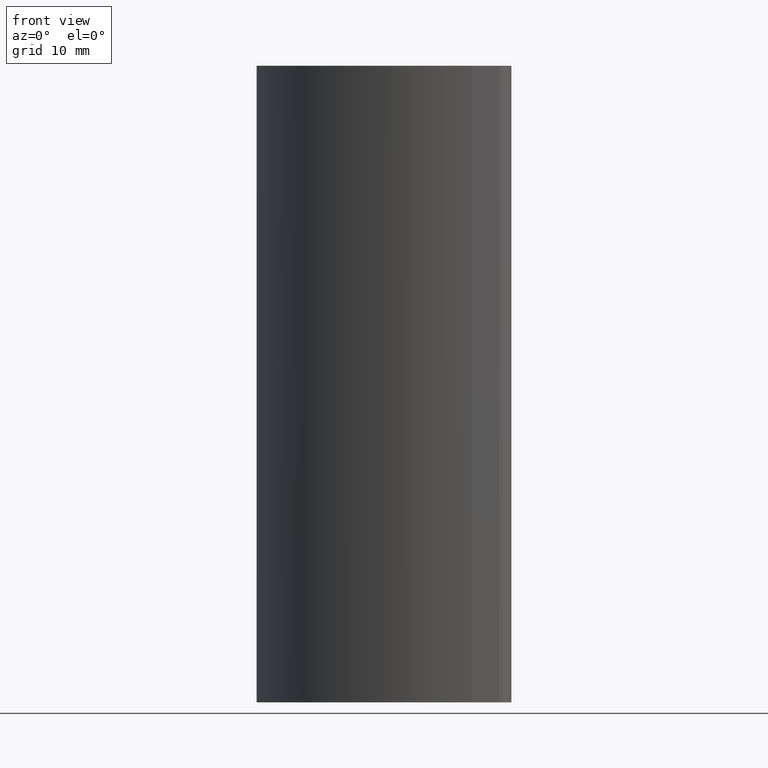
[diagram: clean part render]
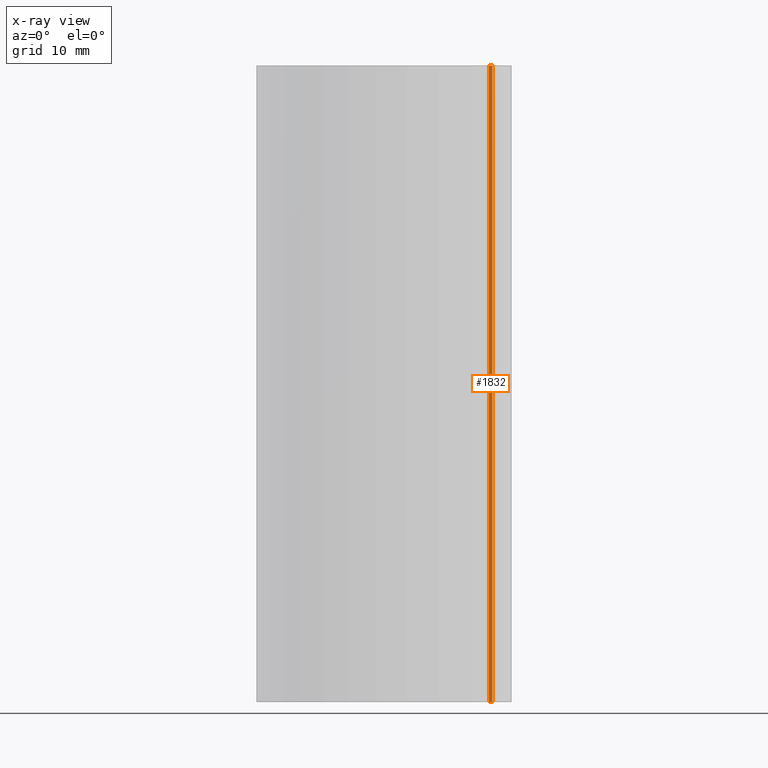
[diagram: x-ray — body ghosted, one internal face saturated and labeled with its STEP entity id]
A machine part, front view, then the same camera in x-ray: the body is ghosted and one INTERNAL B-rep face — a face not visible from any outside direction — is saturated and labeled: STEP entity #1832.
In plain terms, the highlighted planar face has unit normal (0, -1, 0).
Its self-contained STEP definition (entity closure, byte-faithful):
#197=FACE_OUTER_BOUND('',#293,.T.);
#293=EDGE_LOOP('',(#1322,#1323,#1324,#1325));
#421=LINE('',#2849,#605);
#422=LINE('',#2853,#606);
#423=LINE('',#2855,#607);
#424=LINE('',#2856,#608);
#605=VECTOR('',#2287,100.);
#606=VECTOR('',#2292,0.5);
#607=VECTOR('',#2293,100.);
#608=VECTOR('',#2294,0.5);
#800=VERTEX_POINT('',#2846);
#801=VERTEX_POINT('',#2848);
#802=VERTEX_POINT('',#2852);
#803=VERTEX_POINT('',#2854);
#1014=EDGE_CURVE('',#801,#800,#421,.T.);
#1016=EDGE_CURVE('',#802,#800,#422,.T.);
#1017=EDGE_CURVE('',#803,#802,#423,.T.);
#1018=EDGE_CURVE('',#801,#803,#424,.T.);
#1322=ORIENTED_EDGE('',*,*,#1016,.F.);
#1323=ORIENTED_EDGE('',*,*,#1017,.F.);
#1324=ORIENTED_EDGE('',*,*,#1018,.F.);
#1325=ORIENTED_EDGE('',*,*,#1014,.T.);
#1764=PLANE('',#1969);
#1832=ADVANCED_FACE('',(#197),#1764,.F.);
#1969=AXIS2_PLACEMENT_3D('',#2851,#2290,#2291);
#2287=DIRECTION('',(0.,0.,1.));
#2290=DIRECTION('center_axis',(1.55431223447522E-14,-1.,0.));
#2291=DIRECTION('ref_axis',(1.,1.54543045027822E-14,0.));
#2292=DIRECTION('',(-1.,-1.55431223447522E-14,0.));
#2293=DIRECTION('',(0.,0.,1.));
#2294=DIRECTION('',(1.,1.55431223447522E-14,0.));
#2846=CARTESIAN_POINT('',(16.4999997578296,8.00000398454527,100.));
#2848=CARTESIAN_POINT('',(16.4999997578296,8.00000398454527,0.));
#2849=CARTESIAN_POINT('',(16.4999997578296,8.00000398454527,0.));
#2851=CARTESIAN_POINT('Origin',(16.4999997578296,8.00000398454527,0.));
#2852=CARTESIAN_POINT('',(16.9999997578296,8.00000398454527,100.));
#2853=CARTESIAN_POINT('',(8.24999987891473,8.00000398454514,100.));
#2854=CARTESIAN_POINT('',(16.9999997578296,8.00000398454527,0.));
#2855=CARTESIAN_POINT('',(16.9999997578296,8.00000398454527,0.));
#2856=CARTESIAN_POINT('',(8.24999987891473,8.00000398454514,0.));